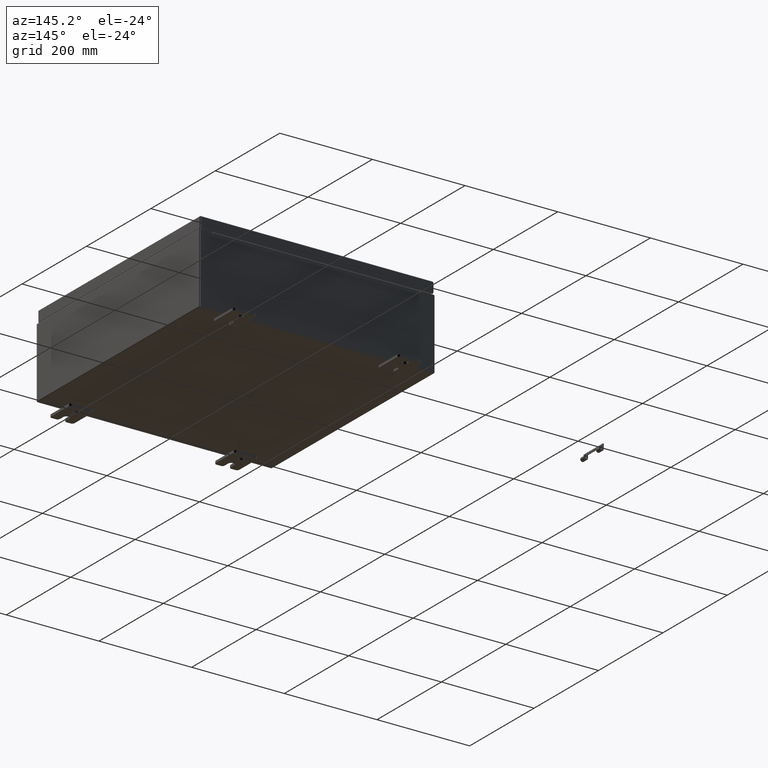
[diagram: clean part render]
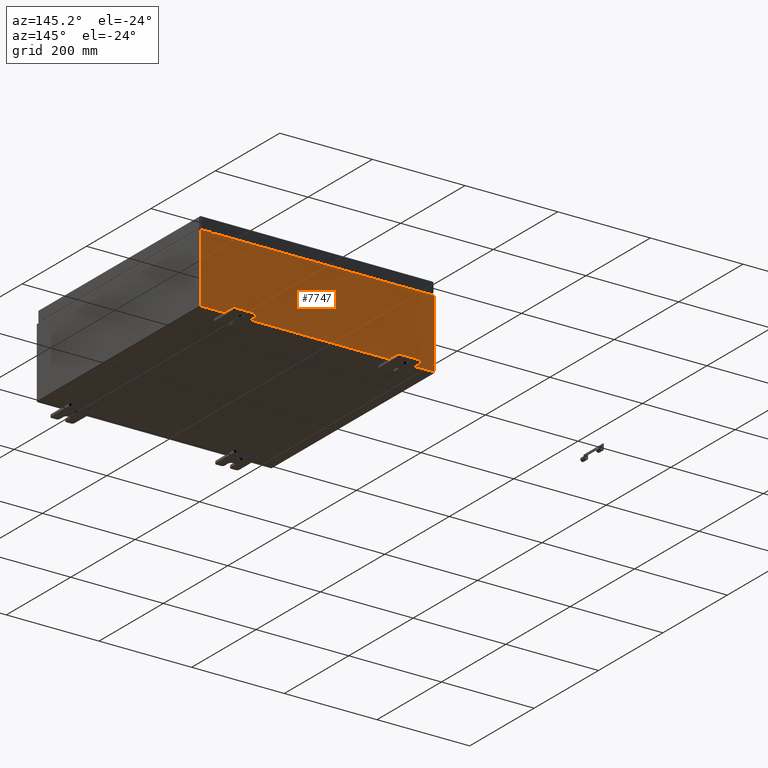
[diagram: same view with one face highlighted and labeled with its STEP entity id]
A machine part, auxiliary view. The second image highlights one B-rep face of the part: STEP entity #7747.
In plain terms, the highlighted planar face has unit normal (0, -1, 0).
Its self-contained STEP definition (entity closure, byte-faithful):
#158 = DIRECTION ( 'NONE',  ( 0.0000000000000000000, 0.0000000000000000000, -1.000000000000000000 ) ) ;
#2146 = CARTESIAN_POINT ( 'NONE',  ( -8.905874999999998200, 0.0000000000000000000, 2.874950000000000600 ) ) ;
#2802 = CARTESIAN_POINT ( 'NONE',  ( -9.925300000000000000, 0.0000000000000000000, -2.925299999999999600 ) ) ;
#2907 = VERTEX_POINT ( 'NONE', #36855 ) ;
#3215 = CARTESIAN_POINT ( 'NONE',  ( 8.905875000000000000, 0.0000000000000000000, 2.874950000000000600 ) ) ;
#4066 = VECTOR ( 'NONE', #39053, 39.37007874015748100 ) ;
#4225 = LINE ( 'NONE', #58497, #15659 ) ;
#5079 = CARTESIAN_POINT ( 'NONE',  ( 9.925300000000000000, 0.0000000000000000000, 2.925300000000000500 ) ) ;
#5156 = DIRECTION ( 'NONE',  ( 1.000000000000000000, 0.0000000000000000000, 0.0000000000000000000 ) ) ;
#5914 = VERTEX_POINT ( 'NONE', #50642 ) ;
#5942 = ORIENTED_EDGE ( 'NONE', *, *, #19875, .T. ) ;
#6424 = EDGE_CURVE ( 'NONE', #43686, #52179, #54814, .T. ) ;
#6851 = VECTOR ( 'NONE', #62398, 39.37007874015748100 ) ;
#7054 = DIRECTION ( 'NONE',  ( 0.0000000000000000000, 0.0000000000000000000, -1.000000000000000000 ) ) ;
#7135 = LINE ( 'NONE', #5079, #18614 ) ;
#7305 = EDGE_CURVE ( 'NONE', #28625, #43686, #7135, .T. ) ;
#7747 = ADVANCED_FACE ( 'NONE', ( #57066 ), #53153, .F. ) ;
#8093 = DIRECTION ( 'NONE',  ( 0.0000000000000000000, 0.0000000000000000000, -1.000000000000000000 ) ) ;
#8774 = CIRCLE ( 'NONE', #16602, 0.01867500000000003900 ) ;
#10321 = LINE ( 'NONE', #53289, #21792 ) ;
#12254 = VERTEX_POINT ( 'NONE', #19659 ) ;
#13022 = ORIENTED_EDGE ( 'NONE', *, *, #30641, .F. ) ;
#15659 = VECTOR ( 'NONE', #58697, 39.37007874015748100 ) ;
#15800 = CARTESIAN_POINT ( 'NONE',  ( 8.924549999999875600, -0.0000000000000000000, -3.873765880731832600E-013 ) ) ;
#15967 = ORIENTED_EDGE ( 'NONE', *, *, #6424, .T. ) ;
#16034 = CARTESIAN_POINT ( 'NONE',  ( -8.887200000000000000, 1.024442997624098700E-016, 2.912300000000000600 ) ) ;
#16401 = VECTOR ( 'NONE', #5156, 39.37007874015748100 ) ;
#16602 = AXIS2_PLACEMENT_3D ( 'NONE', #3215, #37560, #8093 ) ;
#17051 = EDGE_CURVE ( 'NONE', #47001, #30077, #21070, .T. ) ;
#17143 = VECTOR ( 'NONE', #38391, 39.37007874015748100 ) ;
#17883 = AXIS2_PLACEMENT_3D ( 'NONE', #62848, #58101, #28621 ) ;
#18008 = CARTESIAN_POINT ( 'NONE',  ( 9.925300000000000000, 0.0000000000000000000, 2.925300000000000500 ) ) ;
#18334 = LINE ( 'NONE', #27963, #6851 ) ;
#18614 = VECTOR ( 'NONE', #158, 39.37007874015748100 ) ;
#19659 = CARTESIAN_POINT ( 'NONE',  ( 8.887200000000000000, 0.0000000000000000000, 2.912300000000000600 ) ) ;
#19730 = CARTESIAN_POINT ( 'NONE',  ( 8.924550000000000000, 0.0000000000000000000, 2.874950000000000600 ) ) ;
#19875 = EDGE_CURVE ( 'NONE', #47001, #28625, #57212, .T. ) ;
#20229 = EDGE_CURVE ( 'NONE', #30077, #46594, #8774, .T. ) ;
#21070 = LINE ( 'NONE', #15800, #45682 ) ;
#21366 = LINE ( 'NONE', #42347, #45993 ) ;
#21792 = VECTOR ( 'NONE', #23839, 39.37007874015748100 ) ;
#22396 = CARTESIAN_POINT ( 'NONE',  ( -8.924549999999998200, 0.0000000000000000000, 2.874950000000000600 ) ) ;
#23195 = VERTEX_POINT ( 'NONE', #22396 ) ;
#23686 = VECTOR ( 'NONE', #50745, 39.37007874015748100 ) ;
#23743 = CARTESIAN_POINT ( 'NONE',  ( -9.925300000000000000, 0.0000000000000000000, -2.925299999999999600 ) ) ;
#23839 = DIRECTION ( 'NONE',  ( 0.0000000000000000000, 0.0000000000000000000, 1.000000000000000000 ) ) ;
#24038 = ORIENTED_EDGE ( 'NONE', *, *, #36800, .T. ) ;
#25605 = CARTESIAN_POINT ( 'NONE',  ( 8.924550000000000000, 0.0000000000000000000, 2.925300000000000500 ) ) ;
#27639 = CIRCLE ( 'NONE', #55681, 0.01867500000000003900 ) ;
#27963 = CARTESIAN_POINT ( 'NONE',  ( -9.925300000000000000, 0.0000000000000000000, 2.925300000000000500 ) ) ;
#28621 = DIRECTION ( 'NONE',  ( 0.0000000000000000000, -0.0000000000000000000, -1.000000000000000000 ) ) ;
#28625 = VERTEX_POINT ( 'NONE', #18008 ) ;
#29586 = DIRECTION ( 'NONE',  ( -4.340572780400004900E-014, 0.0000000000000000000, -1.000000000000000000 ) ) ;
#30077 = VERTEX_POINT ( 'NONE', #19730 ) ;
#30117 = LINE ( 'NONE', #34321, #4066 ) ;
#30641 = EDGE_CURVE ( 'NONE', #46594, #12254, #30117, .T. ) ;
#31978 = ORIENTED_EDGE ( 'NONE', *, *, #42007, .F. ) ;
#34321 = CARTESIAN_POINT ( 'NONE',  ( 8.887200000000000000, 0.0000000000000000000, 0.0000000000000000000 ) ) ;
#35524 = EDGE_CURVE ( 'NONE', #51343, #23195, #27639, .T. ) ;
#35531 = ORIENTED_EDGE ( 'NONE', *, *, #17051, .F. ) ;
#36489 = DIRECTION ( 'NONE',  ( -0.0000000000000000000, 1.000000000000000000, -0.0000000000000000000 ) ) ;
#36800 = EDGE_CURVE ( 'NONE', #2907, #5914, #21366, .T. ) ;
#36855 = CARTESIAN_POINT ( 'NONE',  ( -9.925300000000000000, 0.0000000000000000000, 2.925300000000000500 ) ) ;
#37170 = EDGE_CURVE ( 'NONE', #55804, #12254, #62944, .T. ) ;
#37560 = DIRECTION ( 'NONE',  ( -0.0000000000000000000, 1.000000000000000000, -0.0000000000000000000 ) ) ;
#38391 = DIRECTION ( 'NONE',  ( -1.000000000000000000, -0.0000000000000000000, -0.0000000000000000000 ) ) ;
#39053 = DIRECTION ( 'NONE',  ( 0.0000000000000000000, 0.0000000000000000000, 1.000000000000000000 ) ) ;
#39097 = CARTESIAN_POINT ( 'NONE',  ( -9.925300000000000000, 0.0000000000000000000, 2.925300000000000500 ) ) ;
#42007 = EDGE_CURVE ( 'NONE', #23195, #5914, #10321, .T. ) ;
#42347 = CARTESIAN_POINT ( 'NONE',  ( -9.925300000000000000, 0.0000000000000000000, 2.925300000000000500 ) ) ;
#43686 = VERTEX_POINT ( 'NONE', #46031 ) ;
#43922 = EDGE_CURVE ( 'NONE', #52179, #2907, #18334, .T. ) ;
#44907 = CARTESIAN_POINT ( 'NONE',  ( -8.887200000000000000, 1.024442997624098700E-016, 2.912300000000000600 ) ) ;
#45682 = VECTOR ( 'NONE', #29586, 39.37007874015748100 ) ;
#45993 = VECTOR ( 'NONE', #47280, 39.37007874015748100 ) ;
#46030 = ORIENTED_EDGE ( 'NONE', *, *, #43922, .T. ) ;
#46031 = CARTESIAN_POINT ( 'NONE',  ( 9.925300000000000000, 0.0000000000000000000, -2.925299999999999600 ) ) ;
#46594 = VERTEX_POINT ( 'NONE', #61805 ) ;
#47001 = VERTEX_POINT ( 'NONE', #25605 ) ;
#47280 = DIRECTION ( 'NONE',  ( 1.000000000000000000, 0.0000000000000000000, 0.0000000000000000000 ) ) ;
#49343 = EDGE_CURVE ( 'NONE', #55804, #51343, #4225, .T. ) ;
#50642 = CARTESIAN_POINT ( 'NONE',  ( -8.924550000000000000, 0.0000000000000000000, 2.925300000000000500 ) ) ;
#50686 = CARTESIAN_POINT ( 'NONE',  ( -8.887200000000000000, -0.0000000000000000000, 2.874950000000000600 ) ) ;
#50745 = DIRECTION ( 'NONE',  ( 1.000000000000000000, 0.0000000000000000000, 0.0000000000000000000 ) ) ;
#51341 = EDGE_LOOP ( 'NONE', ( #31978, #58798, #58978, #55520, #13022, #62913, #35531, #5942, #62950, #15967, #46030, #24038 ) ) ;
#51343 = VERTEX_POINT ( 'NONE', #50686 ) ;
#52179 = VERTEX_POINT ( 'NONE', #2802 ) ;
#53153 = PLANE ( 'NONE',  #17883 ) ;
#53289 = CARTESIAN_POINT ( 'NONE',  ( -8.924550000000000000, -0.0000000000000000000, 0.0000000000000000000 ) ) ;
#54814 = LINE ( 'NONE', #23743, #17143 ) ;
#55520 = ORIENTED_EDGE ( 'NONE', *, *, #37170, .T. ) ;
#55681 = AXIS2_PLACEMENT_3D ( 'NONE', #2146, #36489, #7054 ) ;
#55804 = VERTEX_POINT ( 'NONE', #16034 ) ;
#57066 = FACE_OUTER_BOUND ( 'NONE', #51341, .T. ) ;
#57212 = LINE ( 'NONE', #39097, #16401 ) ;
#58101 = DIRECTION ( 'NONE',  ( 0.0000000000000000000, -1.000000000000000000, 0.0000000000000000000 ) ) ;
#58497 = CARTESIAN_POINT ( 'NONE',  ( -8.887200000000000000, -0.0000000000000000000, 0.0000000000000000000 ) ) ;
#58697 = DIRECTION ( 'NONE',  ( 0.0000000000000000000, 0.0000000000000000000, -1.000000000000000000 ) ) ;
#58798 = ORIENTED_EDGE ( 'NONE', *, *, #35524, .F. ) ;
#58978 = ORIENTED_EDGE ( 'NONE', *, *, #49343, .F. ) ;
#61805 = CARTESIAN_POINT ( 'NONE',  ( 8.887200000000000000, 0.0000000000000000000, 2.874950000000000600 ) ) ;
#62398 = DIRECTION ( 'NONE',  ( -0.0000000000000000000, -0.0000000000000000000, 1.000000000000000000 ) ) ;
#62848 = CARTESIAN_POINT ( 'NONE',  ( 0.0000000000000000000, 0.0000000000000000000, 0.0000000000000000000 ) ) ;
#62913 = ORIENTED_EDGE ( 'NONE', *, *, #20229, .F. ) ;
#62944 = LINE ( 'NONE', #44907, #23686 ) ;
#62950 = ORIENTED_EDGE ( 'NONE', *, *, #7305, .T. ) ;